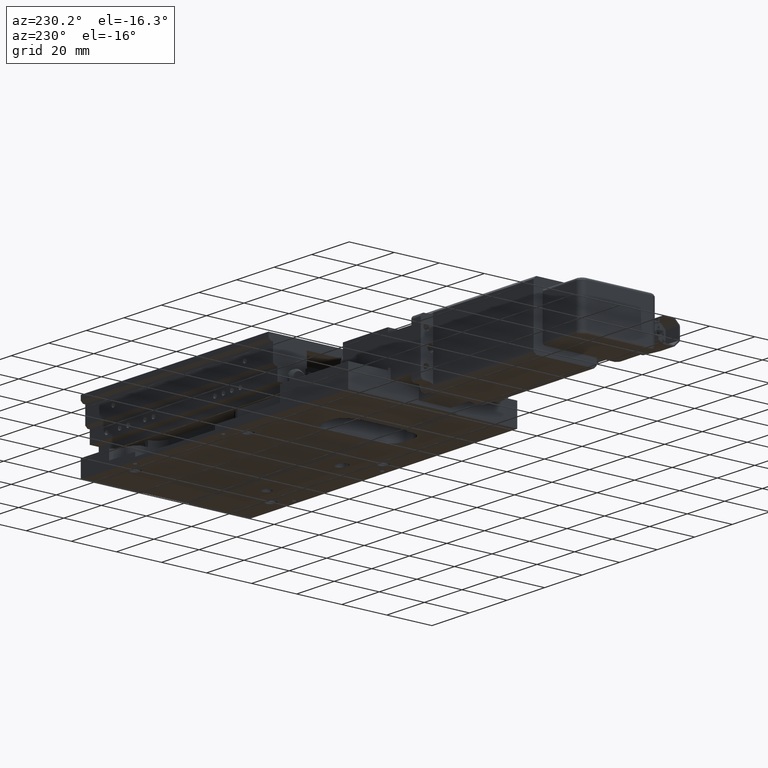
[diagram: clean part render]
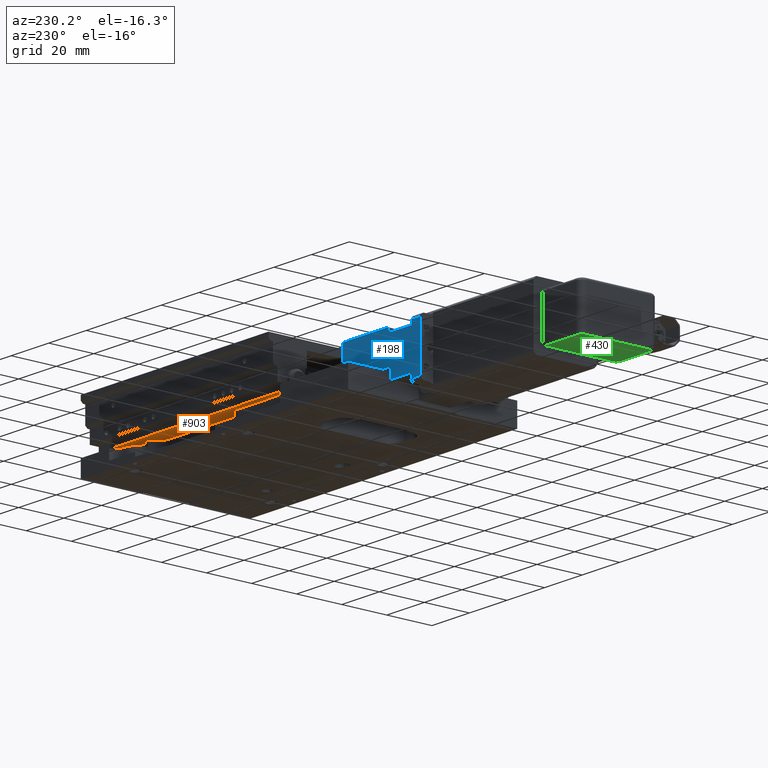
[diagram: same view with three faces highlighted in distinct colors, each labeled with its STEP entity id]
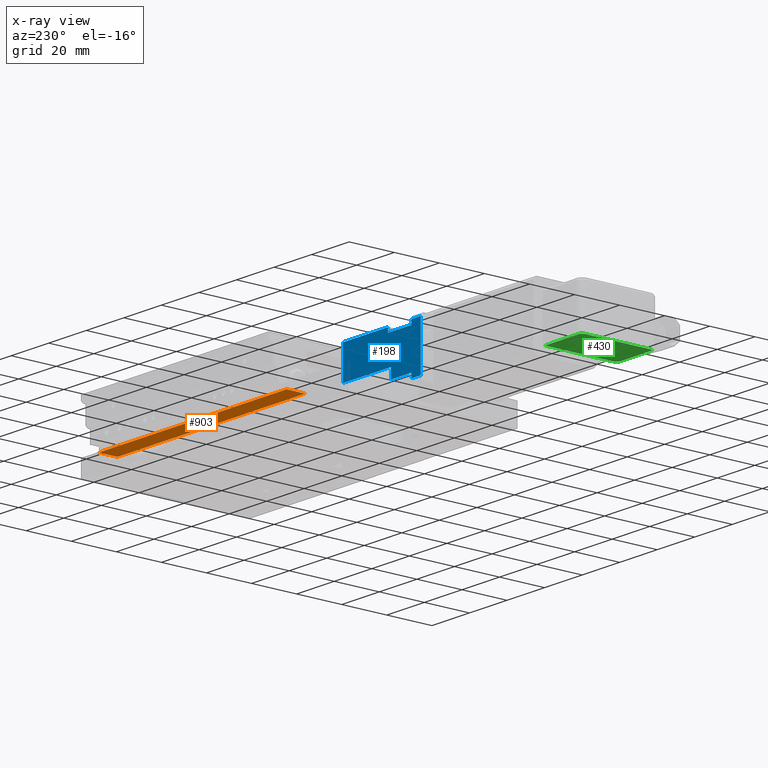
[diagram: x-ray of the same camera — body ghosted, the three highlighted faces saturated]
A machine part, auxiliary view with three faces highlighted in distinct colors.
The next image is the same camera in x-ray (body ghosted, the three faces saturated) — at least one of them is partly hidden behind the body in this view.
Their STEP definitions:

[orange] entity #903 — the highlighted planar face has unit normal (0, 0, 1).
#903=ADVANCED_FACE('',(#8804),#8803,.F.);
#8803=PLANE('',#16983);
#8804=FACE_OUTER_BOUND('',#16984,.T.);
#16980=CARTESIAN_POINT('',(-6.00000000000E+01,2.03700000000E+01,1.10000000000E+01));
#16981=DIRECTION('',(0.00000000000E+00,0.00000000000E+00,1.00000000000E+00));
#16982=DIRECTION('',(1.00000000000E+00,0.00000000000E+00,0.00000000000E+00));
#16983=AXIS2_PLACEMENT_3D('',#16980,#16981,#16982);
#16984=EDGE_LOOP('',(#22633,#22634,#22635,#22636));
#22633=ORIENTED_EDGE('',*,*,#25659,.F.);
#22634=ORIENTED_EDGE('',*,*,#25570,.T.);
#22635=ORIENTED_EDGE('',*,*,#25655,.T.);
#22636=ORIENTED_EDGE('',*,*,#25535,.F.);
#25535=EDGE_CURVE('',#39065,#39066,#39067,.T.);
#25570=EDGE_CURVE('',#39311,#39304,#39312,.T.);
#25655=EDGE_CURVE('',#39304,#39066,#39885,.T.);
#25659=EDGE_CURVE('',#39311,#39065,#39909,.T.);
#39065=VERTEX_POINT('',#51001);
#39066=VERTEX_POINT('',#51002);
#39067=LINE('',#51003,#51004);
#39304=VERTEX_POINT('',#51144);
#39311=VERTEX_POINT('',#51148);
#39312=LINE('',#51149,#51150);
#39885=LINE('',#51505,#51506);
#39909=LINE('',#51517,#51518);
#51001=CARTESIAN_POINT('',(-5.00000000000E+01,2.95000000000E+01,1.10000000000E+01));
#51002=CARTESIAN_POINT('',(-5.00000000000E+01,2.12000000000E+01,1.10000000000E+01));
#51003=CARTESIAN_POINT('',(-5.00000000000E+01,2.95000000000E+01,1.10000000000E+01));
#51004=VECTOR('',#51005,8.30000000000E+00);
#51005=DIRECTION('',(0.00000000000E+00,-1.00000000000E+00,0.00000000000E+00));
#51144=CARTESIAN_POINT('',(5.00000000000E+01,2.12000000000E+01,1.10000000000E+01));
#51148=CARTESIAN_POINT('',(5.00000000000E+01,2.95000000000E+01,1.10000000000E+01));
#51149=CARTESIAN_POINT('',(5.00000000000E+01,2.95000000000E+01,1.10000000000E+01));
#51150=VECTOR('',#51151,8.30000000000E+00);
#51151=DIRECTION('',(0.00000000000E+00,-1.00000000000E+00,0.00000000000E+00));
#51505=CARTESIAN_POINT('',(5.00000000000E+01,2.12000000000E+01,1.10000000000E+01));
#51506=VECTOR('',#51507,1.00000000000E+02);
#51507=DIRECTION('',(-1.00000000000E+00,0.00000000000E+00,0.00000000000E+00));
#51517=CARTESIAN_POINT('',(5.00000000000E+01,2.95000000000E+01,1.10000000000E+01));
#51518=VECTOR('',#51519,1.00000000000E+02);
#51519=DIRECTION('',(-1.00000000000E+00,0.00000000000E+00,0.00000000000E+00));

[blue] entity #198 — the highlighted planar face has unit normal (0, 1, 0).
#198=ADVANCED_FACE('',(#1659),#1658,.T.);
#1658=PLANE('',#11671);
#1659=FACE_OUTER_BOUND('',#11672,.T.);
#11668=CARTESIAN_POINT('',(-1.13650000000E+02,1.95000000000E+01,2.76000000000E+01));
#11669=DIRECTION('',(-0.00000000000E+00,1.00000000000E+00,0.00000000000E+00));
#11670=DIRECTION('',(1.00000000000E+00,0.00000000000E+00,0.00000000000E+00));
#11671=AXIS2_PLACEMENT_3D('',#11668,#11669,#11670);
#11672=EDGE_LOOP('',(#18829,#18830,#18831,#18832,#18833,#18834,#18835,#18836,#18837,#18838,#18839,#18840,#18841));
#18829=ORIENTED_EDGE('',*,*,#23832,.T.);
#18830=ORIENTED_EDGE('',*,*,#23803,.T.);
#18831=ORIENTED_EDGE('',*,*,#23833,.F.);
#18832=ORIENTED_EDGE('',*,*,#23807,.T.);
#18833=ORIENTED_EDGE('',*,*,#23834,.T.);
#18834=ORIENTED_EDGE('',*,*,#23835,.T.);
#18835=ORIENTED_EDGE('',*,*,#23836,.T.);
#18836=ORIENTED_EDGE('',*,*,#23837,.F.);
#18837=ORIENTED_EDGE('',*,*,#23838,.F.);
#18838=ORIENTED_EDGE('',*,*,#23839,.F.);
#18839=ORIENTED_EDGE('',*,*,#23840,.F.);
#18840=ORIENTED_EDGE('',*,*,#23841,.F.);
#18841=ORIENTED_EDGE('',*,*,#23842,.T.);
#23803=EDGE_CURVE('',#27596,#27610,#27617,.T.);
#23807=EDGE_CURVE('',#27624,#27638,#27645,.T.);
#23832=EDGE_CURVE('',#27819,#27596,#27820,.T.);
#23833=EDGE_CURVE('',#27624,#27610,#27826,.T.);
#23834=EDGE_CURVE('',#27638,#27832,#27833,.T.);
#23835=EDGE_CURVE('',#27832,#27839,#27840,.T.);
#23836=EDGE_CURVE('',#27839,#27846,#27847,.T.);
#23837=EDGE_CURVE('',#27853,#27846,#27854,.T.);
#23838=EDGE_CURVE('',#27860,#27853,#27861,.T.);
#23839=EDGE_CURVE('',#27867,#27860,#27868,.T.);
#23840=EDGE_CURVE('',#27874,#27867,#27875,.T.);
#23841=EDGE_CURVE('',#27881,#27874,#27882,.T.);
#23842=EDGE_CURVE('',#27881,#27819,#27888,.T.);
#27596=VERTEX_POINT('',#44002);
#27610=VERTEX_POINT('',#44011);
#27617=LINE('',#44016,#44017);
#27624=VERTEX_POINT('',#44020);
#27638=VERTEX_POINT('',#44029);
#27645=LINE('',#44034,#44035);
#27819=VERTEX_POINT('',#44145);
#27820=LINE('',#44146,#44147);
#27826=LINE('',#44149,#44150);
#27832=VERTEX_POINT('',#44152);
#27833=LINE('',#44153,#44154);
#27839=VERTEX_POINT('',#44156);
#27840=LINE('',#44157,#44158);
#27846=VERTEX_POINT('',#44160);
#27847=LINE('',#44161,#44162);
#27853=VERTEX_POINT('',#44164);
#27854=LINE('',#44165,#44166);
#27860=VERTEX_POINT('',#44168);
#27861=LINE('',#44169,#44170);
#27867=VERTEX_POINT('',#44172);
#27868=LINE('',#44173,#44174);
#27874=VERTEX_POINT('',#44176);
#27875=LINE('',#44177,#44178);
#27881=VERTEX_POINT('',#44180);
#27882=LINE('',#44181,#44182);
#27888=LINE('',#44184,#44185);
#44002=CARTESIAN_POINT('',(-1.04500000000E+02,1.95000000000E+01,4.50000000009E+00));
#44011=CARTESIAN_POINT('',(-1.09500000000E+02,1.95000000000E+01,4.50000000009E+00));
#44016=CARTESIAN_POINT('',(-1.04500000000E+02,1.95000000000E+01,4.50000000009E+00));
#44017=VECTOR('',#44018,5.00000000000E+00);
#44018=DIRECTION('',(-1.00000000000E+00,0.00000000000E+00,0.00000000000E+00));
#44020=CARTESIAN_POINT('',(-1.09500000000E+02,1.95000000000E+01,2.55000000000E+01));
#44029=CARTESIAN_POINT('',(-1.04500000000E+02,1.95000000000E+01,2.55000000000E+01));
#44034=CARTESIAN_POINT('',(-1.09500000000E+02,1.95000000000E+01,2.55000000000E+01));
#44035=VECTOR('',#44036,5.00000000000E+00);
#44036=DIRECTION('',(1.00000000000E+00,0.00000000000E+00,0.00000000000E+00));
#44145=CARTESIAN_POINT('',(-1.04500000000E+02,1.95000000000E+01,6.50000000005E+00));
#44146=CARTESIAN_POINT('',(-1.04500000000E+02,1.95000000000E+01,6.50000000005E+00));
#44147=VECTOR('',#44148,1.99999999996E+00);
#44148=DIRECTION('',(0.00000000000E+00,0.00000000000E+00,-1.00000000000E+00));
#44149=CARTESIAN_POINT('',(-1.09500000000E+02,1.95000000000E+01,2.55000000000E+01));
#44150=VECTOR('',#44151,2.09999999999E+01);
#44151=DIRECTION('',(0.00000000000E+00,0.00000000000E+00,-1.00000000000E+00));
#44152=CARTESIAN_POINT('',(-1.04500000000E+02,1.95000000000E+01,2.35000000000E+01));
#44153=CARTESIAN_POINT('',(-1.04500000000E+02,1.95000000000E+01,2.55000000000E+01));
#44154=VECTOR('',#44155,2.00000000000E+00);
#44155=DIRECTION('',(0.00000000000E+00,0.00000000000E+00,-1.00000000000E+00));
#44156=CARTESIAN_POINT('',(-9.20000000000E+01,1.95000000000E+01,2.35000000000E+01));
#44157=CARTESIAN_POINT('',(-1.04500000000E+02,1.95000000000E+01,2.35000000000E+01));
#44158=VECTOR('',#44159,1.25000000000E+01);
#44159=DIRECTION('',(1.00000000000E+00,0.00000000000E+00,0.00000000000E+00));
#44160=CARTESIAN_POINT('',(-9.20000000000E+01,1.95000000000E+01,2.55000000000E+01));
#44161=CARTESIAN_POINT('',(-9.20000000000E+01,1.95000000000E+01,2.35000000000E+01));
#44162=VECTOR('',#44163,2.00000000004E+00);
#44163=DIRECTION('',(0.00000000000E+00,0.00000000000E+00,1.00000000000E+00));
#44164=CARTESIAN_POINT('',(-6.80000000000E+01,1.95000000000E+01,2.55000000000E+01));
#44165=CARTESIAN_POINT('',(-6.80000000000E+01,1.95000000000E+01,2.55000000000E+01));
#44166=VECTOR('',#44167,2.40000000000E+01);
#44167=DIRECTION('',(-1.00000000000E+00,0.00000000000E+00,0.00000000000E+00));
#44168=CARTESIAN_POINT('',(-6.80000000000E+01,1.95000000000E+01,1.10000000000E+01));
#44169=CARTESIAN_POINT('',(-6.80000000000E+01,1.95000000000E+01,1.10000000000E+01));
#44170=VECTOR('',#44171,1.44999999999E+01);
#44171=DIRECTION('',(0.00000000000E+00,0.00000000000E+00,1.00000000000E+00));
#44172=CARTESIAN_POINT('',(-9.25000000000E+01,1.95000000000E+01,1.10000000000E+01));
#44173=CARTESIAN_POINT('',(-9.25000000000E+01,1.95000000000E+01,1.10000000000E+01));
#44174=VECTOR('',#44175,2.45000000000E+01);
#44175=DIRECTION('',(1.00000000000E+00,0.00000000000E+00,0.00000000000E+00));
#44176=CARTESIAN_POINT('',(-9.35000000000E+01,1.95000000000E+01,1.10000000000E+01));
#44177=CARTESIAN_POINT('',(-9.35000000000E+01,1.95000000000E+01,1.10000000000E+01));
#44178=VECTOR('',#44179,9.99999999990E-01);
#44179=DIRECTION('',(1.00000000000E+00,0.00000000000E+00,0.00000000000E+00));
#44180=CARTESIAN_POINT('',(-9.35000000000E+01,1.95000000000E+01,6.50000000005E+00));
#44181=CARTESIAN_POINT('',(-9.35000000000E+01,1.95000000000E+01,6.50000000005E+00));
#44182=VECTOR('',#44183,4.50000000000E+00);
#44183=DIRECTION('',(0.00000000000E+00,0.00000000000E+00,1.00000000000E+00));
#44184=CARTESIAN_POINT('',(-9.35000000000E+01,1.95000000000E+01,6.50000000005E+00));
#44185=VECTOR('',#44186,1.10000000000E+01);
#44186=DIRECTION('',(-1.00000000000E+00,0.00000000000E+00,0.00000000000E+00));

[green] entity #430 — the highlighted planar face has unit normal (0, 0, 1).
#430=ADVANCED_FACE('',(#4021),#4020,.F.);
#4020=PLANE('',#14154);
#4021=FACE_OUTER_BOUND('',#14155,.T.);
#14151=CARTESIAN_POINT('',(-1.61050000000E+02,-2.62000000003E+01,5.00000000005E+00));
#14152=DIRECTION('',(0.00000000000E+00,1.02042557410E-16,1.00000000000E+00));
#14153=DIRECTION('',(0.00000000000E+00,1.00000000000E+00,-1.02042557410E-16));
#14154=AXIS2_PLACEMENT_3D('',#14151,#14152,#14153);
#14155=EDGE_LOOP('',(#20125,#20126,#20127,#20128,#20129,#20130,#20131,#20132));
#20125=ORIENTED_EDGE('',*,*,#24565,.T.);
#20126=ORIENTED_EDGE('',*,*,#24539,.T.);
#20127=ORIENTED_EDGE('',*,*,#24536,.T.);
#20128=ORIENTED_EDGE('',*,*,#24543,.T.);
#20129=ORIENTED_EDGE('',*,*,#24567,.T.);
#20130=ORIENTED_EDGE('',*,*,#24581,.T.);
#20131=ORIENTED_EDGE('',*,*,#24582,.T.);
#20132=ORIENTED_EDGE('',*,*,#24583,.T.);
#24536=EDGE_CURVE('',#32526,#32519,#32527,.T.);
#24539=EDGE_CURVE('',#32546,#32526,#32547,.T.);
#24543=EDGE_CURVE('',#32519,#32567,#32574,.T.);
#24565=EDGE_CURVE('',#32717,#32546,#32718,.T.);
#24567=EDGE_CURVE('',#32567,#32730,#32731,.T.);
#24581=EDGE_CURVE('',#32730,#32822,#32823,.T.);
#24582=EDGE_CURVE('',#32822,#32829,#32830,.T.);
#24583=EDGE_CURVE('',#32829,#32717,#32836,.T.);
#32519=VERTEX_POINT('',#47419);
#32526=VERTEX_POINT('',#47424);
#32527=LINE('',#47425,#47426);
#32546=VERTEX_POINT('',#47436);
#32547=CIRCLE('',#47440,1.50000000000E+00);
#32567=VERTEX_POINT('',#47451);
#32574=CIRCLE('',#47459,1.50000000000E+00);
#32717=VERTEX_POINT('',#47540);
#32718=LINE('',#47541,#47542);
#32730=VERTEX_POINT('',#47549);
#32731=LINE('',#47550,#47551);
#32822=VERTEX_POINT('',#47603);
#32823=LINE('',#47604,#47605);
#32829=VERTEX_POINT('',#47607);
#32830=LINE('',#47608,#47609);
#32836=LINE('',#47611,#47612);
#47419=CARTESIAN_POINT('',(-1.82500000000E+02,7.50000000100E+00,5.00000000005E+00));
#47424=CARTESIAN_POINT('',(-1.82500000000E+02,-2.14999999990E+01,5.00000000005E+00));
#47425=CARTESIAN_POINT('',(-1.82500000000E+02,-2.14999999990E+01,5.00000000005E+00));
#47426=VECTOR('',#47427,2.90000000000E+01);
#47427=DIRECTION('',(0.00000000000E+00,1.00000000000E+00,-1.22507368235E-16));
#47436=CARTESIAN_POINT('',(-1.81000000000E+02,-2.29999999990E+01,5.00000000005E+00));
#47437=CARTESIAN_POINT('',(-1.81000000000E+02,-2.14999999990E+01,5.00000000005E+00));
#47438=DIRECTION('',(0.00000000000E+00,0.00000000000E+00,-1.00000000000E+00));
#47439=DIRECTION('',(-0.00000000000E+00,1.00000000000E+00,-0.00000000000E+00));
#47440=AXIS2_PLACEMENT_3D('',#47437,#47438,#47439);
#47451=CARTESIAN_POINT('',(-1.81000000000E+02,9.00000000100E+00,5.00000000005E+00));
#47456=CARTESIAN_POINT('',(-1.81000000000E+02,7.50000000100E+00,5.00000000005E+00));
#47457=DIRECTION('',(-0.00000000000E+00,-1.02042557410E-16,-1.00000000000E+00));
#47458=DIRECTION('',(1.00000000000E+00,-0.00000000000E+00,-0.00000000000E+00));
#47459=AXIS2_PLACEMENT_3D('',#47456,#47457,#47458);
#47540=CARTESIAN_POINT('',(-1.63947368423E+02,-2.29999999990E+01,5.00000000005E+00));
#47541=CARTESIAN_POINT('',(-1.63947368423E+02,-2.29999999990E+01,5.00000000005E+00));
#47542=VECTOR('',#47543,1.70526315766E+01);
#47543=DIRECTION('',(-1.00000000000E+00,4.16676295720E-16,-1.04169073930E-16));
#47549=CARTESIAN_POINT('',(-1.63000000000E+02,9.00000000100E+00,5.00000000005E+00));
#47550=CARTESIAN_POINT('',(-1.81000000000E+02,9.00000000100E+00,5.00000000005E+00));
#47551=VECTOR('',#47552,1.80000000000E+01);
#47552=DIRECTION('',(1.00000000000E+00,0.00000000000E+00,0.00000000000E+00));
#47603=CARTESIAN_POINT('',(-1.63000000000E+02,-1.39999999990E+01,5.00000000005E+00));
#47604=CARTESIAN_POINT('',(-1.63000000000E+02,9.00000000100E+00,5.00000000005E+00));
#47605=VECTOR('',#47606,2.30000000000E+01);
#47606=DIRECTION('',(0.00000000000E+00,-1.00000000000E+00,7.72329060609E-17));
#47607=CARTESIAN_POINT('',(-1.63000000000E+02,-2.20999999990E+01,5.00000000005E+00));
#47608=CARTESIAN_POINT('',(-1.63000000000E+02,-1.39999999990E+01,5.00000000005E+00));
#47609=VECTOR('',#47610,8.10000000000E+00);
#47610=DIRECTION('',(0.00000000000E+00,-1.00000000000E+00,4.38606627012E-16));
#47611=CARTESIAN_POINT('',(-1.63000000000E+02,-2.20999999990E+01,5.00000000005E+00));
#47612=VECTOR('',#47613,1.30671608612E+00);
#47613=DIRECTION('',(-7.24999433594E-01,-6.88749461915E-01,0.00000000000E+00));